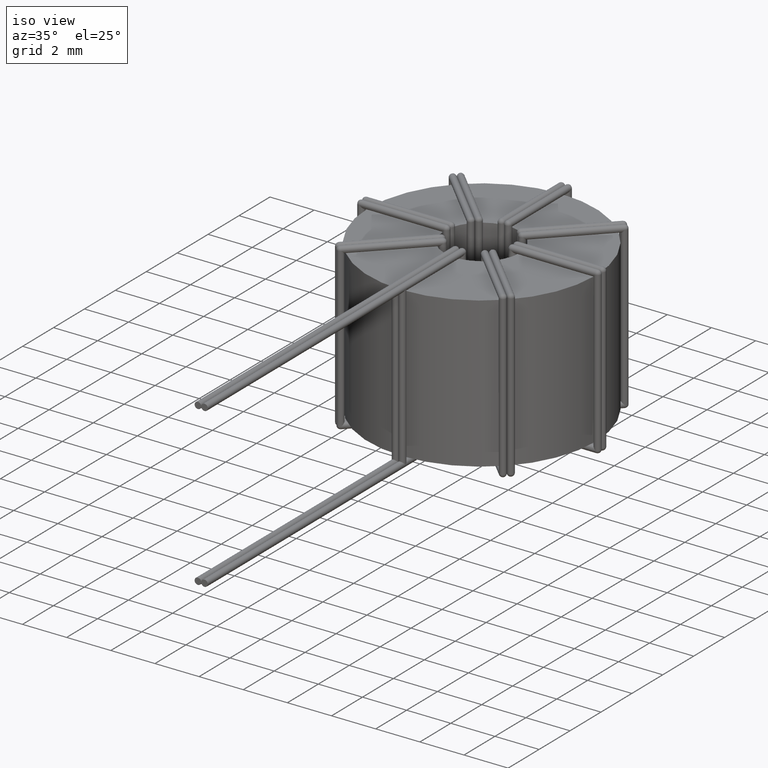
[diagram: clean part render]
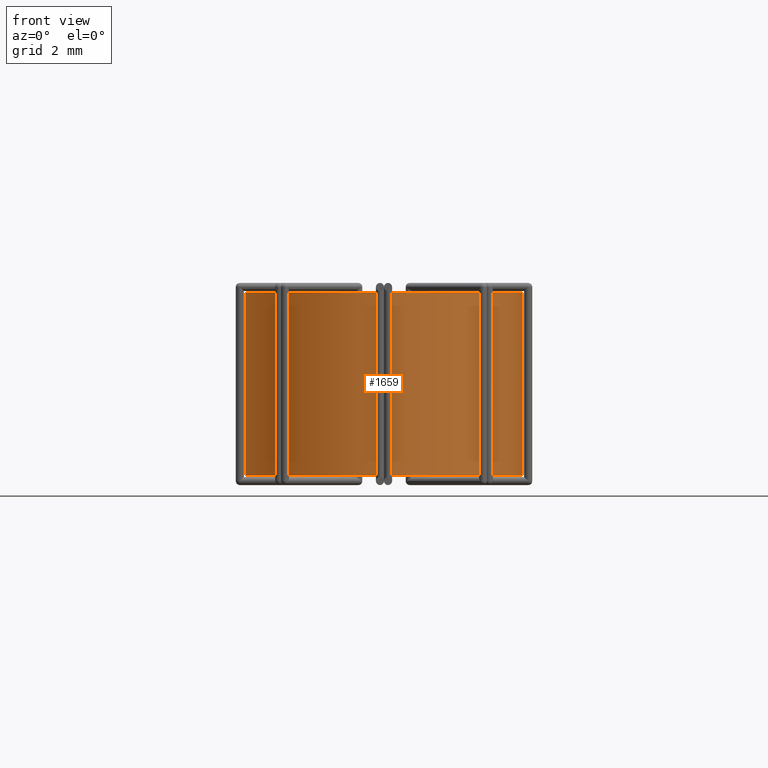
[diagram: tour spotlight — one face highlighted and labeled with its STEP entity id]
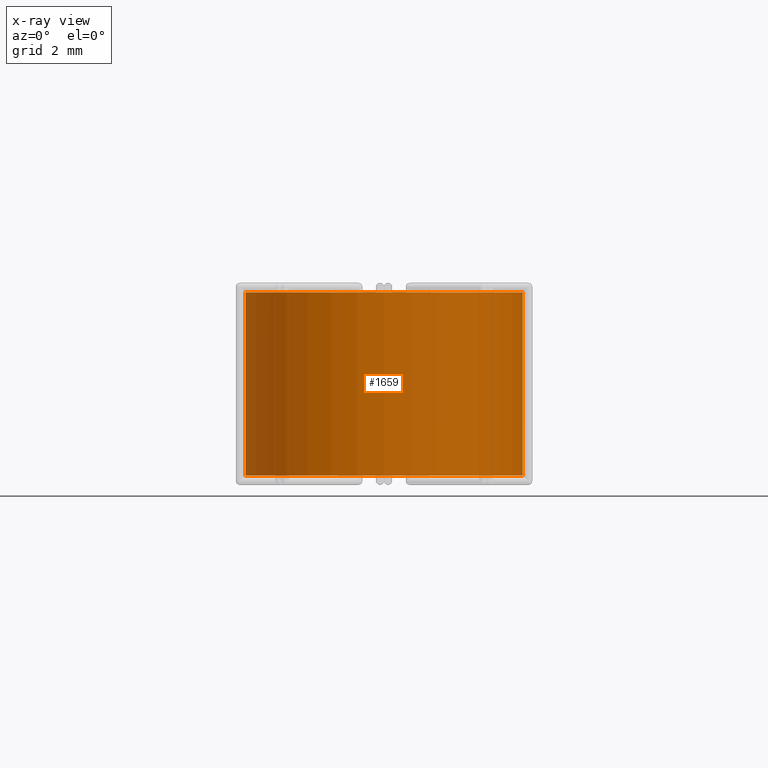
[diagram: x-ray of the same camera — body ghosted, this tour face saturated]
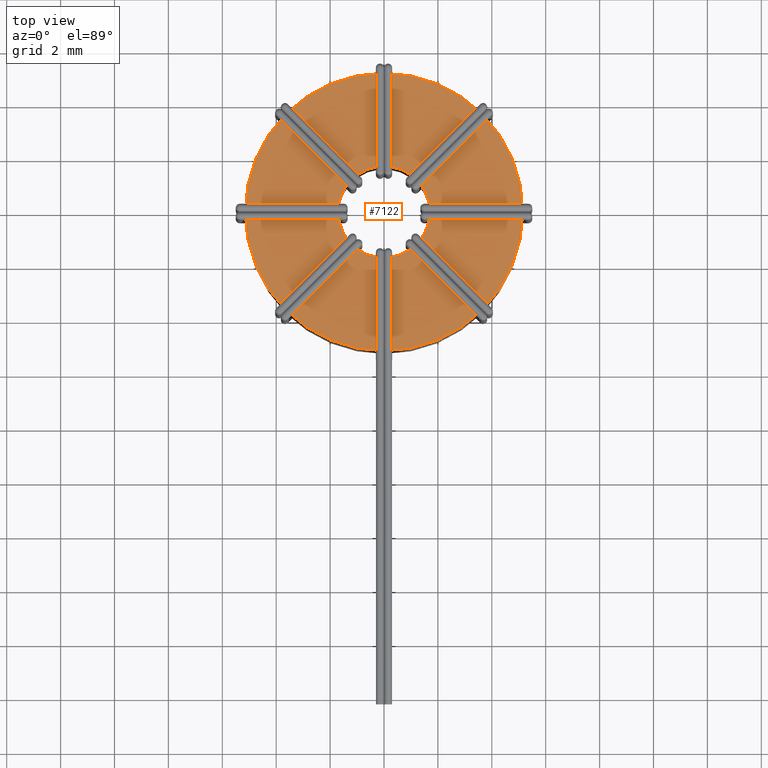
[diagram: tour spotlight — one face highlighted and labeled with its STEP entity id]
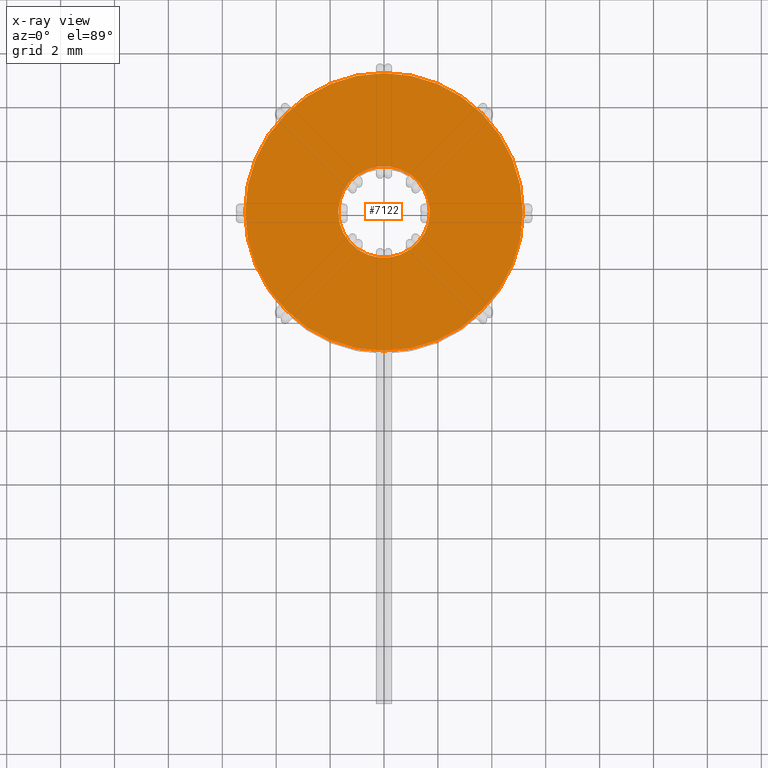
[diagram: x-ray of the same camera — body ghosted, this tour face saturated]
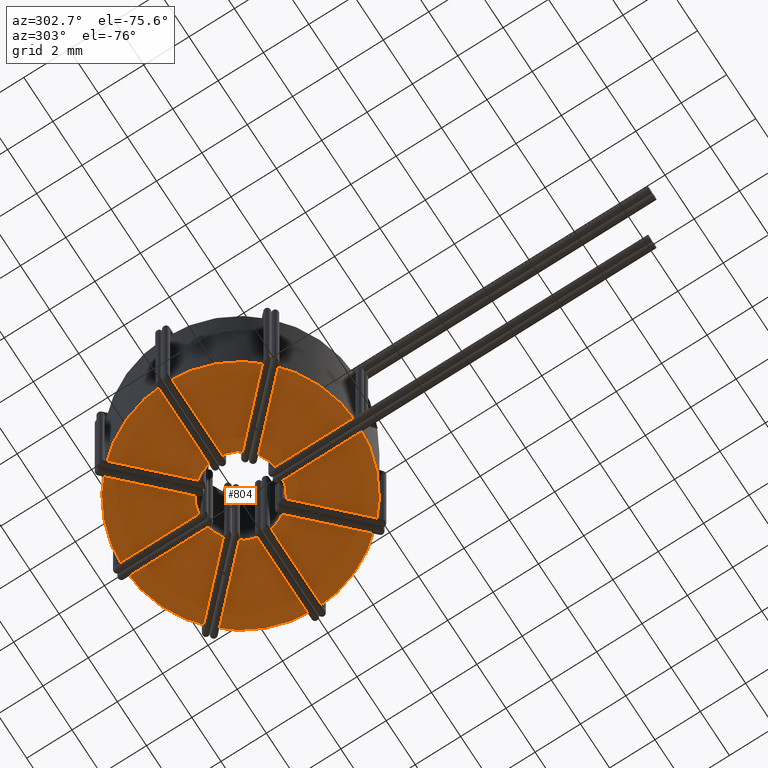
[diagram: tour spotlight — one face highlighted and labeled with its STEP entity id]
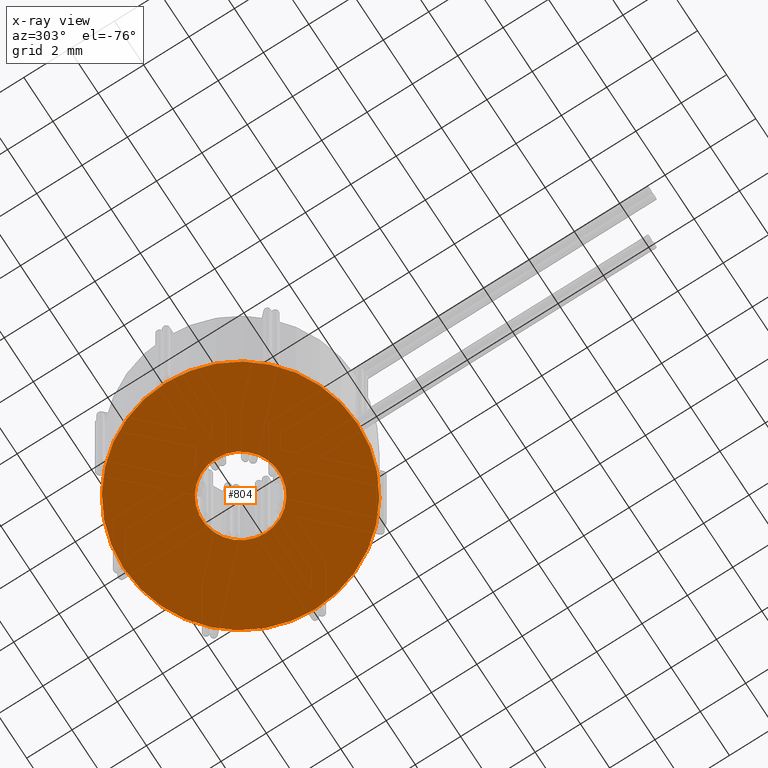
[diagram: x-ray of the same camera — body ghosted, this tour face saturated]
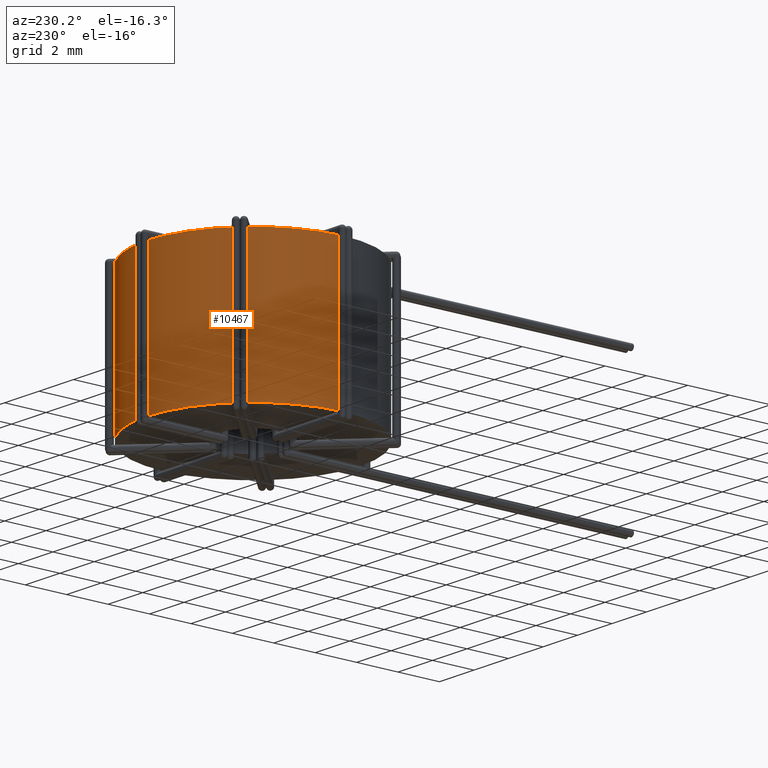
[diagram: tour spotlight — one face highlighted and labeled with its STEP entity id]
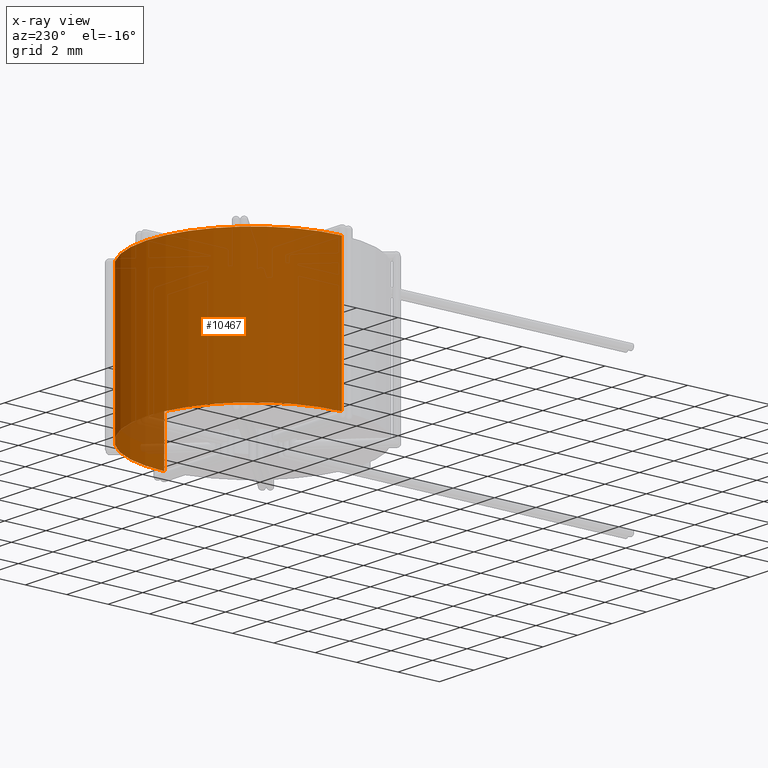
[diagram: x-ray of the same camera — body ghosted, this tour face saturated]
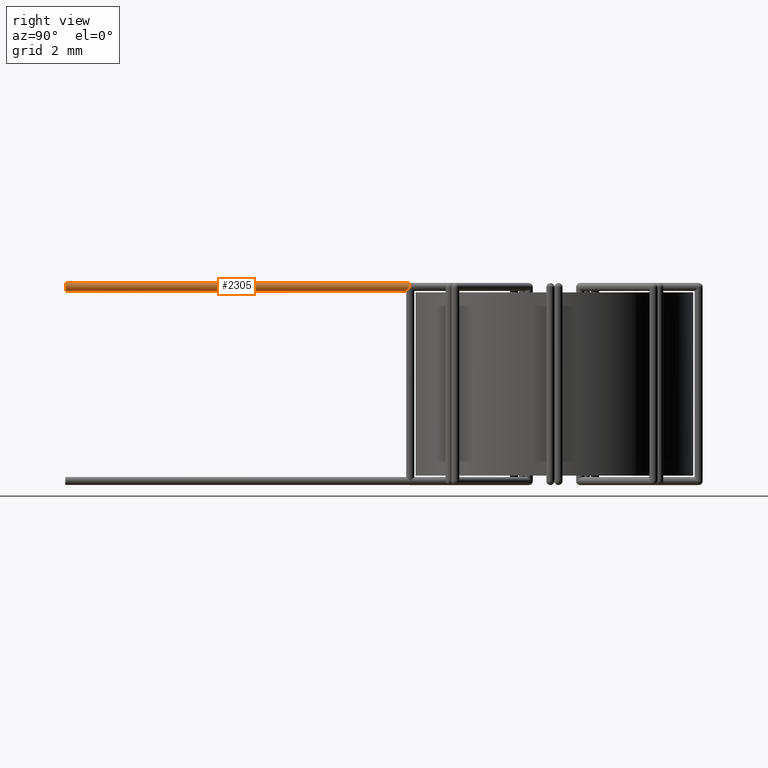
[diagram: tour spotlight — one face highlighted and labeled with its STEP entity id]
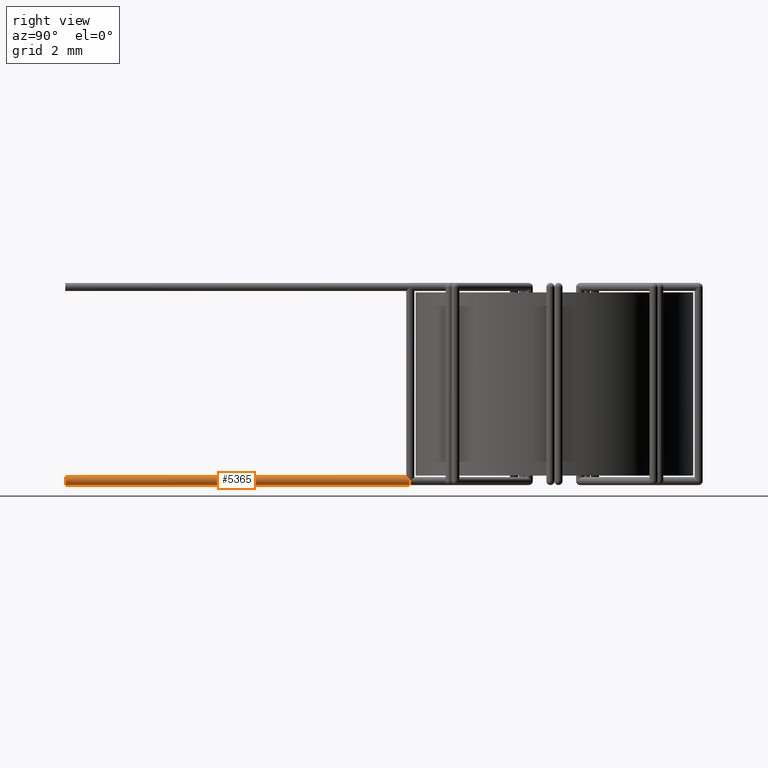
[diagram: tour spotlight — one face highlighted and labeled with its STEP entity id]
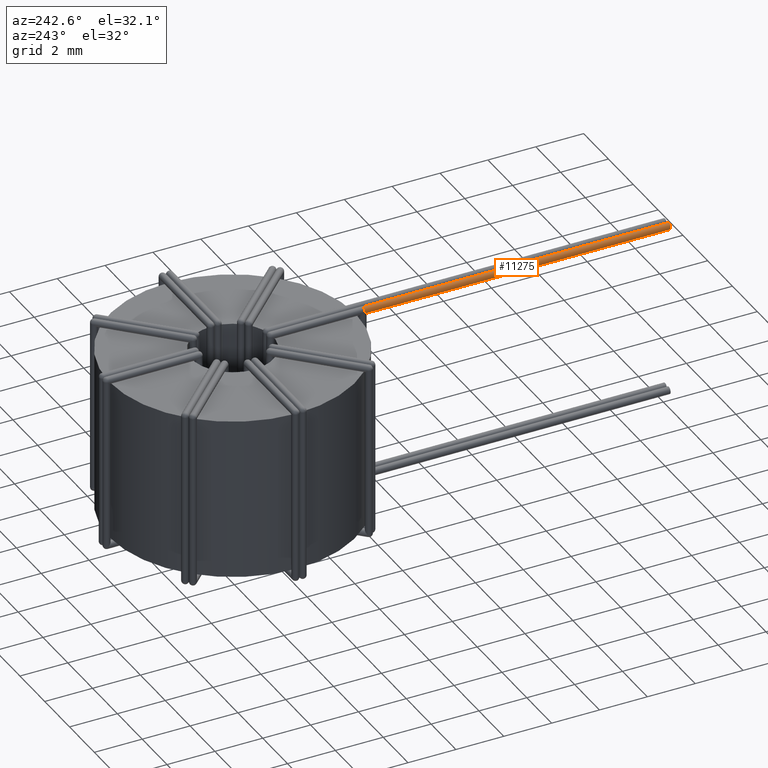
[diagram: tour spotlight — one face highlighted and labeled with its STEP entity id]
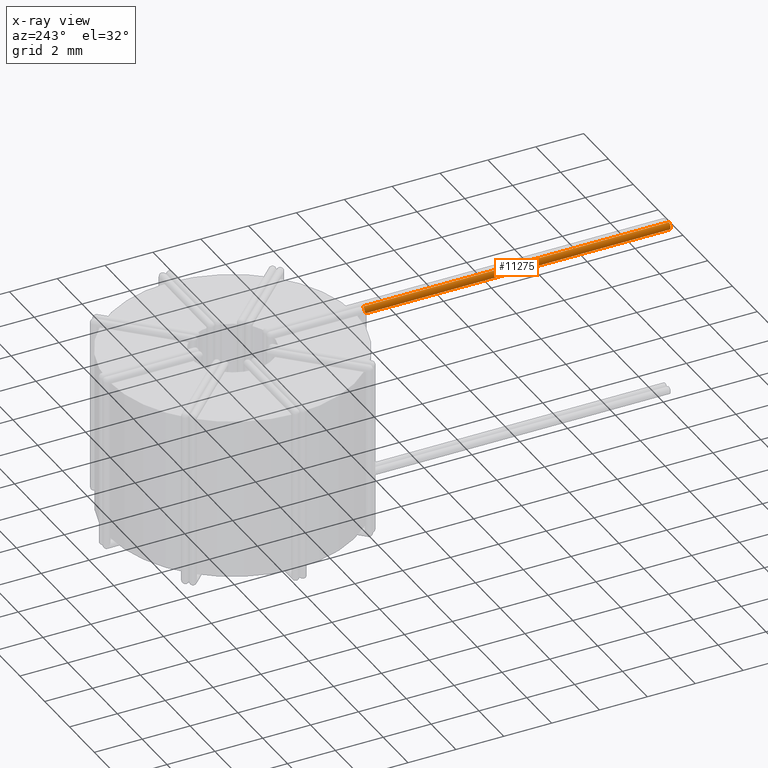
[diagram: x-ray of the same camera — body ghosted, this tour face saturated]
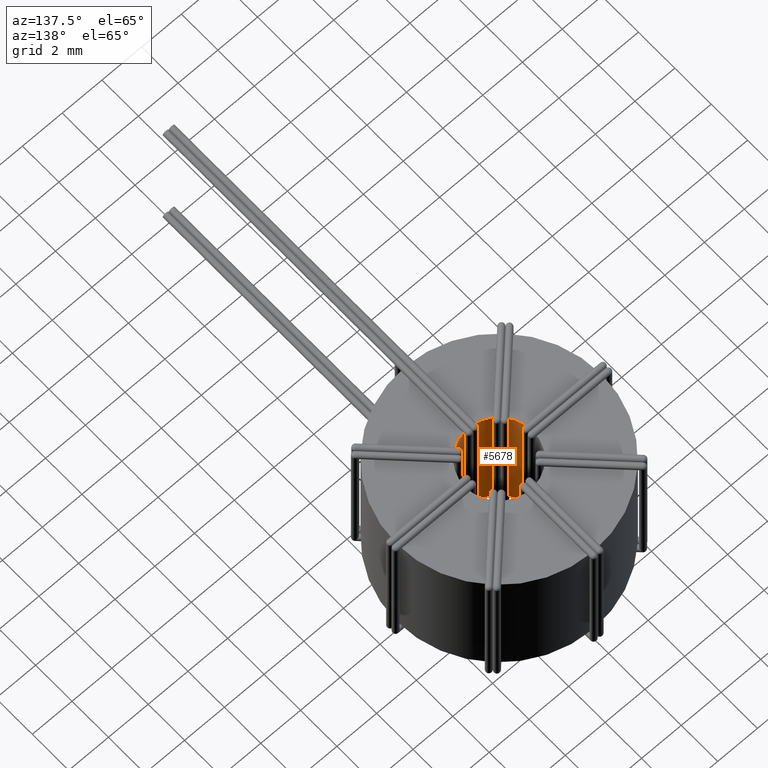
[diagram: tour spotlight — one face highlighted and labeled with its STEP entity id]
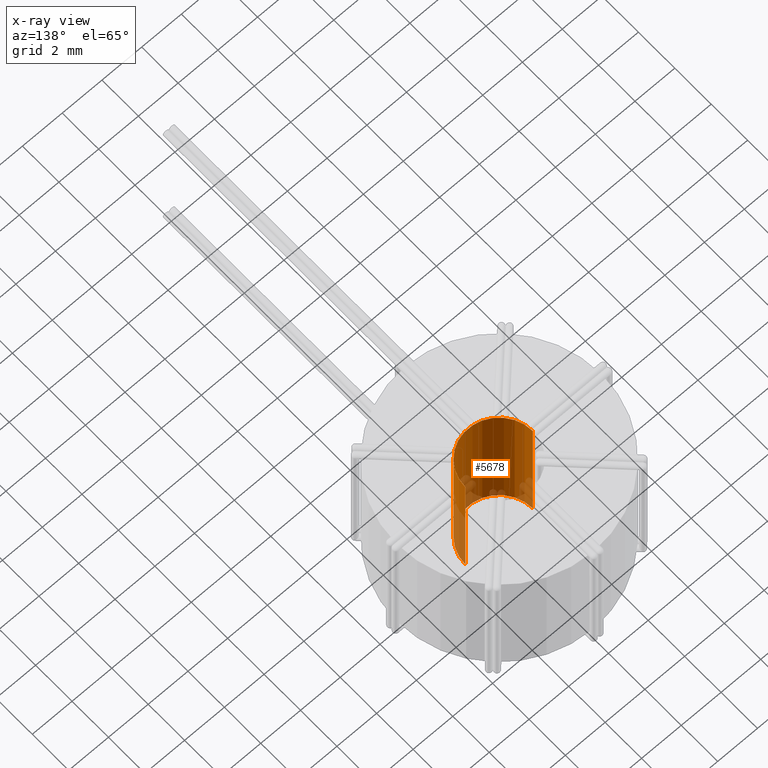
[diagram: x-ray of the same camera — body ghosted, this tour face saturated]
A machine part: a face-by-face anatomy tour. The part has 398 B-rep faces; the first image is the clean iso view, then the 8 largest visible faces are spotlighted one at a time (largest first), each with its STEP entity span.

Face 1 — front view, entity #1659. An x-ray twin of the same camera follows (body ghosted, this face saturated) — the face is partly hidden behind the body. In plain terms, the highlighted cylindrical surface (partial cylindrical patch) has radius 5.15 mm, axis along (-0, -0, -1).
Definition (entity closure, byte-faithful):
#30 = DIRECTION ( 'NONE',  ( 1.000000000000000000, 0.0000000000000000000, 0.0000000000000000000 ) ) ;
#178 = DIRECTION ( 'NONE',  ( -1.000000000000000000, 0.0000000000000000000, 0.0000000000000000000 ) ) ;
#180 = EDGE_CURVE ( 'NONE', #1134, #15159, #1705, .T. ) ;
#240 = CARTESIAN_POINT ( 'NONE',  ( -5.150000000000001200, 0.0000000000000000000, 6.799999999999999800 ) ) ;
#798 = CIRCLE ( 'NONE', #15149, 5.150000000000001200 ) ;
#859 = CARTESIAN_POINT ( 'NONE',  ( 5.150000000000001200, 6.306931015608869600E-016, 6.799999999999999800 ) ) ;
#909 = DIRECTION ( 'NONE',  ( -0.0000000000000000000, -0.0000000000000000000, -1.000000000000000000 ) ) ;
#1134 = VERTEX_POINT ( 'NONE', #240 ) ;
#1208 = DIRECTION ( 'NONE',  ( 0.0000000000000000000, 0.0000000000000000000, 1.000000000000000000 ) ) ;
#1659 = ADVANCED_FACE ( 'NONE', ( #6867 ), #9917, .T. ) ;
#1705 = LINE ( 'NONE', #12386, #15304 ) ;
#2496 = DIRECTION ( 'NONE',  ( 1.000000000000000000, 0.0000000000000000000, 0.0000000000000000000 ) ) ;
#3266 = EDGE_LOOP ( 'NONE', ( #14865, #10513, #3286, #10995 ) ) ;
#3286 = ORIENTED_EDGE ( 'NONE', *, *, #180, .T. ) ;
#3940 = EDGE_CURVE ( 'NONE', #15159, #6441, #10447, .T. ) ;
#4101 = EDGE_CURVE ( 'NONE', #13351, #6441, #6991, .T. ) ;
#5402 = CARTESIAN_POINT ( 'NONE',  ( 5.150000000000001200, 6.306931015608869600E-016, 6.799999999999999800 ) ) ;
#5963 = CARTESIAN_POINT ( 'NONE',  ( -5.150000000000001200, 0.0000000000000000000, 0.0000000000000000000 ) ) ;
#6269 = AXIS2_PLACEMENT_3D ( 'NONE', #14692, #14842, #178 ) ;
#6441 = VERTEX_POINT ( 'NONE', #12516 ) ;
#6867 = FACE_OUTER_BOUND ( 'NONE', #3266, .T. ) ;
#6991 = LINE ( 'NONE', #859, #14229 ) ;
#9863 = CARTESIAN_POINT ( 'NONE',  ( 0.0000000000000000000, 0.0000000000000000000, 0.0000000000000000000 ) ) ;
#9917 = CYLINDRICAL_SURFACE ( 'NONE', #6269, 5.150000000000001200 ) ;
#10447 = CIRCLE ( 'NONE', #13671, 5.150000000000001200 ) ;
#10513 = ORIENTED_EDGE ( 'NONE', *, *, #12531, .F. ) ;
#10995 = ORIENTED_EDGE ( 'NONE', *, *, #3940, .T. ) ;
#12164 = CARTESIAN_POINT ( 'NONE',  ( 0.0000000000000000000, 0.0000000000000000000, 6.799999999999999800 ) ) ;
#12386 = CARTESIAN_POINT ( 'NONE',  ( -5.150000000000001200, 0.0000000000000000000, 6.799999999999999800 ) ) ;
#12516 = CARTESIAN_POINT ( 'NONE',  ( 5.150000000000001200, 6.306931015608869600E-016, 0.0000000000000000000 ) ) ;
#12531 = EDGE_CURVE ( 'NONE', #1134, #13351, #798, .T. ) ;
#13351 = VERTEX_POINT ( 'NONE', #5402 ) ;
#13671 = AXIS2_PLACEMENT_3D ( 'NONE', #9863, #1208, #2496 ) ;
#14229 = VECTOR ( 'NONE', #909, 1000.000000000000000 ) ;
#14483 = DIRECTION ( 'NONE',  ( 0.0000000000000000000, 0.0000000000000000000, 1.000000000000000000 ) ) ;
#14692 = CARTESIAN_POINT ( 'NONE',  ( 0.0000000000000000000, 0.0000000000000000000, 6.799999999999999800 ) ) ;
#14700 = DIRECTION ( 'NONE',  ( -0.0000000000000000000, -0.0000000000000000000, -1.000000000000000000 ) ) ;
#14842 = DIRECTION ( 'NONE',  ( -0.0000000000000000000, -0.0000000000000000000, -1.000000000000000000 ) ) ;
#14865 = ORIENTED_EDGE ( 'NONE', *, *, #4101, .F. ) ;
#15149 = AXIS2_PLACEMENT_3D ( 'NONE', #12164, #14483, #30 ) ;
#15159 = VERTEX_POINT ( 'NONE', #5963 ) ;
#15304 = VECTOR ( 'NONE', #14700, 1000.000000000000000 ) ;

Face 2 — top view, entity #7122. An x-ray twin of the same camera follows (body ghosted, this face saturated) — the face is partly hidden behind the body. In plain terms, the highlighted planar face has unit normal (0, 0, 1).
Definition (entity closure, byte-faithful):
#30 = DIRECTION ( 'NONE',  ( 1.000000000000000000, 0.0000000000000000000, 0.0000000000000000000 ) ) ;
#240 = CARTESIAN_POINT ( 'NONE',  ( -5.150000000000001200, 0.0000000000000000000, 6.799999999999999800 ) ) ;
#286 = CARTESIAN_POINT ( 'NONE',  ( 0.0000000000000000000, 0.0000000000000000000, 6.799999999999999800 ) ) ;
#653 = ORIENTED_EDGE ( 'NONE', *, *, #12531, .T. ) ;
#798 = CIRCLE ( 'NONE', #15149, 5.150000000000001200 ) ;
#953 = CARTESIAN_POINT ( 'NONE',  ( 0.0000000000000000000, 0.0000000000000000000, 6.799999999999999800 ) ) ;
#967 = CIRCLE ( 'NONE', #13948, 1.699500000000000200 ) ;
#1134 = VERTEX_POINT ( 'NONE', #240 ) ;
#1794 = CIRCLE ( 'NONE', #15066, 5.150000000000001200 ) ;
#1810 = AXIS2_PLACEMENT_3D ( 'NONE', #8461, #7154, #5867 ) ;
#2139 = ORIENTED_EDGE ( 'NONE', *, *, #7177, .T. ) ;
#2204 = DIRECTION ( 'NONE',  ( 0.0000000000000000000, 0.0000000000000000000, 1.000000000000000000 ) ) ;
#2832 = DIRECTION ( 'NONE',  ( 1.000000000000000000, 0.0000000000000000000, 0.0000000000000000000 ) ) ;
#3890 = FACE_BOUND ( 'NONE', #7822, .T. ) ;
#4662 = FACE_OUTER_BOUND ( 'NONE', #12675, .T. ) ;
#5402 = CARTESIAN_POINT ( 'NONE',  ( 5.150000000000001200, 6.306931015608869600E-016, 6.799999999999999800 ) ) ;
#5867 = DIRECTION ( 'NONE',  ( 1.000000000000000000, 0.0000000000000000000, -0.0000000000000000000 ) ) ;
#6338 = VERTEX_POINT ( 'NONE', #13457 ) ;
#7044 = PLANE ( 'NONE',  #1810 ) ;
#7122 = ADVANCED_FACE ( 'NONE', ( #4662, #3890 ), #7044, .T. ) ;
#7154 = DIRECTION ( 'NONE',  ( 0.0000000000000000000, 0.0000000000000000000, 1.000000000000000000 ) ) ;
#7177 = EDGE_CURVE ( 'NONE', #13351, #1134, #1794, .T. ) ;
#7686 = EDGE_CURVE ( 'NONE', #6338, #12454, #967, .T. ) ;
#7782 = EDGE_CURVE ( 'NONE', #12454, #6338, #11917, .T. ) ;
#7822 = EDGE_LOOP ( 'NONE', ( #13158, #8034 ) ) ;
#8034 = ORIENTED_EDGE ( 'NONE', *, *, #7686, .F. ) ;
#8461 = CARTESIAN_POINT ( 'NONE',  ( 0.0000000000000000000, 0.0000000000000000000, 6.799999999999999800 ) ) ;
#8962 = DIRECTION ( 'NONE',  ( 0.0000000000000000000, 0.0000000000000000000, 1.000000000000000000 ) ) ;
#9523 = DIRECTION ( 'NONE',  ( 0.0000000000000000000, 0.0000000000000000000, 1.000000000000000000 ) ) ;
#11917 = CIRCLE ( 'NONE', #13337, 1.699500000000000200 ) ;
#12120 = DIRECTION ( 'NONE',  ( 1.000000000000000000, 0.0000000000000000000, 0.0000000000000000000 ) ) ;
#12164 = CARTESIAN_POINT ( 'NONE',  ( 0.0000000000000000000, 0.0000000000000000000, 6.799999999999999800 ) ) ;
#12217 = CARTESIAN_POINT ( 'NONE',  ( -1.699500000000000200, 0.0000000000000000000, 6.799999999999999800 ) ) ;
#12454 = VERTEX_POINT ( 'NONE', #12217 ) ;
#12531 = EDGE_CURVE ( 'NONE', #1134, #13351, #798, .T. ) ;
#12675 = EDGE_LOOP ( 'NONE', ( #653, #2139 ) ) ;
#13158 = ORIENTED_EDGE ( 'NONE', *, *, #7782, .F. ) ;
#13337 = AXIS2_PLACEMENT_3D ( 'NONE', #15780, #9523, #12120 ) ;
#13351 = VERTEX_POINT ( 'NONE', #5402 ) ;
#13457 = CARTESIAN_POINT ( 'NONE',  ( 1.699500000000000200, 2.081287235150927300E-016, 6.799999999999999800 ) ) ;
#13948 = AXIS2_PLACEMENT_3D ( 'NONE', #953, #2204, #15657 ) ;
#14483 = DIRECTION ( 'NONE',  ( 0.0000000000000000000, 0.0000000000000000000, 1.000000000000000000 ) ) ;
#15066 = AXIS2_PLACEMENT_3D ( 'NONE', #286, #8962, #2832 ) ;
#15149 = AXIS2_PLACEMENT_3D ( 'NONE', #12164, #14483, #30 ) ;
#15657 = DIRECTION ( 'NONE',  ( 1.000000000000000000, 0.0000000000000000000, 0.0000000000000000000 ) ) ;
#15780 = CARTESIAN_POINT ( 'NONE',  ( 0.0000000000000000000, 0.0000000000000000000, 6.799999999999999800 ) ) ;

Face 3 — auxiliary view, entity #804. An x-ray twin of the same camera follows (body ghosted, this face saturated) — the face is partly hidden behind the body. In plain terms, the highlighted planar face has unit normal (0, 0, 1).
Definition (entity closure, byte-faithful):
#713 = DIRECTION ( 'NONE',  ( 1.000000000000000000, 0.0000000000000000000, 0.0000000000000000000 ) ) ;
#804 = ADVANCED_FACE ( 'NONE', ( #2735, #8083 ), #11430, .F. ) ;
#861 = DIRECTION ( 'NONE',  ( 1.000000000000000000, 0.0000000000000000000, 0.0000000000000000000 ) ) ;
#932 = DIRECTION ( 'NONE',  ( 0.0000000000000000000, 0.0000000000000000000, 1.000000000000000000 ) ) ;
#1208 = DIRECTION ( 'NONE',  ( 0.0000000000000000000, 0.0000000000000000000, 1.000000000000000000 ) ) ;
#1763 = ORIENTED_EDGE ( 'NONE', *, *, #14431, .F. ) ;
#2496 = DIRECTION ( 'NONE',  ( 1.000000000000000000, 0.0000000000000000000, 0.0000000000000000000 ) ) ;
#2735 = FACE_OUTER_BOUND ( 'NONE', #7908, .T. ) ;
#2817 = CARTESIAN_POINT ( 'NONE',  ( 0.0000000000000000000, 0.0000000000000000000, 0.0000000000000000000 ) ) ;
#3889 = AXIS2_PLACEMENT_3D ( 'NONE', #8108, #4423, #4475 ) ;
#3940 = EDGE_CURVE ( 'NONE', #15159, #6441, #10447, .T. ) ;
#4400 = EDGE_LOOP ( 'NONE', ( #7217, #9536 ) ) ;
#4423 = DIRECTION ( 'NONE',  ( 0.0000000000000000000, 0.0000000000000000000, 1.000000000000000000 ) ) ;
#4475 = DIRECTION ( 'NONE',  ( 1.000000000000000000, 0.0000000000000000000, 0.0000000000000000000 ) ) ;
#4698 = CIRCLE ( 'NONE', #3889, 5.150000000000001200 ) ;
#4921 = CARTESIAN_POINT ( 'NONE',  ( -1.699500000000000200, 0.0000000000000000000, 0.0000000000000000000 ) ) ;
#5283 = AXIS2_PLACEMENT_3D ( 'NONE', #10561, #6978, #861 ) ;
#5963 = CARTESIAN_POINT ( 'NONE',  ( -5.150000000000001200, 0.0000000000000000000, 0.0000000000000000000 ) ) ;
#6441 = VERTEX_POINT ( 'NONE', #12516 ) ;
#6505 = DIRECTION ( 'NONE',  ( 1.000000000000000000, 0.0000000000000000000, -0.0000000000000000000 ) ) ;
#6603 = DIRECTION ( 'NONE',  ( 0.0000000000000000000, 0.0000000000000000000, 1.000000000000000000 ) ) ;
#6978 = DIRECTION ( 'NONE',  ( 0.0000000000000000000, 0.0000000000000000000, 1.000000000000000000 ) ) ;
#7217 = ORIENTED_EDGE ( 'NONE', *, *, #10731, .T. ) ;
#7563 = CIRCLE ( 'NONE', #14351, 1.699500000000000200 ) ;
#7599 = CIRCLE ( 'NONE', #5283, 1.699500000000000200 ) ;
#7908 = EDGE_LOOP ( 'NONE', ( #13250, #1763 ) ) ;
#8061 = CARTESIAN_POINT ( 'NONE',  ( 0.0000000000000000000, 0.0000000000000000000, 0.0000000000000000000 ) ) ;
#8083 = FACE_BOUND ( 'NONE', #4400, .T. ) ;
#8108 = CARTESIAN_POINT ( 'NONE',  ( 0.0000000000000000000, 0.0000000000000000000, 0.0000000000000000000 ) ) ;
#8642 = VERTEX_POINT ( 'NONE', #4921 ) ;
#9536 = ORIENTED_EDGE ( 'NONE', *, *, #11796, .T. ) ;
#9863 = CARTESIAN_POINT ( 'NONE',  ( 0.0000000000000000000, 0.0000000000000000000, 0.0000000000000000000 ) ) ;
#10447 = CIRCLE ( 'NONE', #13671, 5.150000000000001200 ) ;
#10561 = CARTESIAN_POINT ( 'NONE',  ( 0.0000000000000000000, 0.0000000000000000000, 0.0000000000000000000 ) ) ;
#10731 = EDGE_CURVE ( 'NONE', #8642, #13349, #7599, .T. ) ;
#11430 = PLANE ( 'NONE',  #14517 ) ;
#11547 = CARTESIAN_POINT ( 'NONE',  ( 1.699500000000000200, 2.081287235150927300E-016, 0.0000000000000000000 ) ) ;
#11796 = EDGE_CURVE ( 'NONE', #13349, #8642, #7563, .T. ) ;
#12516 = CARTESIAN_POINT ( 'NONE',  ( 5.150000000000001200, 6.306931015608869600E-016, 0.0000000000000000000 ) ) ;
#13250 = ORIENTED_EDGE ( 'NONE', *, *, #3940, .F. ) ;
#13349 = VERTEX_POINT ( 'NONE', #11547 ) ;
#13671 = AXIS2_PLACEMENT_3D ( 'NONE', #9863, #1208, #2496 ) ;
#14351 = AXIS2_PLACEMENT_3D ( 'NONE', #8061, #932, #713 ) ;
#14431 = EDGE_CURVE ( 'NONE', #6441, #15159, #4698, .T. ) ;
#14517 = AXIS2_PLACEMENT_3D ( 'NONE', #2817, #6603, #6505 ) ;
#15159 = VERTEX_POINT ( 'NONE', #5963 ) ;

Face 4 — auxiliary view, entity #10467. An x-ray twin of the same camera follows (body ghosted, this face saturated) — the face is partly hidden behind the body. In plain terms, the highlighted cylindrical surface (partial cylindrical patch) has radius 5.15 mm, axis along (-0, -0, -1).
Definition (entity closure, byte-faithful):
#180 = EDGE_CURVE ( 'NONE', #1134, #15159, #1705, .T. ) ;
#240 = CARTESIAN_POINT ( 'NONE',  ( -5.150000000000001200, 0.0000000000000000000, 6.799999999999999800 ) ) ;
#286 = CARTESIAN_POINT ( 'NONE',  ( 0.0000000000000000000, 0.0000000000000000000, 6.799999999999999800 ) ) ;
#523 = CYLINDRICAL_SURFACE ( 'NONE', #11318, 5.150000000000001200 ) ;
#859 = CARTESIAN_POINT ( 'NONE',  ( 5.150000000000001200, 6.306931015608869600E-016, 6.799999999999999800 ) ) ;
#909 = DIRECTION ( 'NONE',  ( -0.0000000000000000000, -0.0000000000000000000, -1.000000000000000000 ) ) ;
#1134 = VERTEX_POINT ( 'NONE', #240 ) ;
#1705 = LINE ( 'NONE', #12386, #15304 ) ;
#1794 = CIRCLE ( 'NONE', #15066, 5.150000000000001200 ) ;
#2832 = DIRECTION ( 'NONE',  ( 1.000000000000000000, 0.0000000000000000000, 0.0000000000000000000 ) ) ;
#3889 = AXIS2_PLACEMENT_3D ( 'NONE', #8108, #4423, #4475 ) ;
#3936 = ORIENTED_EDGE ( 'NONE', *, *, #4101, .T. ) ;
#4101 = EDGE_CURVE ( 'NONE', #13351, #6441, #6991, .T. ) ;
#4189 = EDGE_LOOP ( 'NONE', ( #6502, #3936, #14366, #7871 ) ) ;
#4423 = DIRECTION ( 'NONE',  ( 0.0000000000000000000, 0.0000000000000000000, 1.000000000000000000 ) ) ;
#4475 = DIRECTION ( 'NONE',  ( 1.000000000000000000, 0.0000000000000000000, 0.0000000000000000000 ) ) ;
#4698 = CIRCLE ( 'NONE', #3889, 5.150000000000001200 ) ;
#5402 = CARTESIAN_POINT ( 'NONE',  ( 5.150000000000001200, 6.306931015608869600E-016, 6.799999999999999800 ) ) ;
#5963 = CARTESIAN_POINT ( 'NONE',  ( -5.150000000000001200, 0.0000000000000000000, 0.0000000000000000000 ) ) ;
#5979 = DIRECTION ( 'NONE',  ( -0.0000000000000000000, -0.0000000000000000000, -1.000000000000000000 ) ) ;
#6441 = VERTEX_POINT ( 'NONE', #12516 ) ;
#6502 = ORIENTED_EDGE ( 'NONE', *, *, #7177, .F. ) ;
#6991 = LINE ( 'NONE', #859, #14229 ) ;
#7177 = EDGE_CURVE ( 'NONE', #13351, #1134, #1794, .T. ) ;
#7871 = ORIENTED_EDGE ( 'NONE', *, *, #180, .F. ) ;
#8108 = CARTESIAN_POINT ( 'NONE',  ( 0.0000000000000000000, 0.0000000000000000000, 0.0000000000000000000 ) ) ;
#8962 = DIRECTION ( 'NONE',  ( 0.0000000000000000000, 0.0000000000000000000, 1.000000000000000000 ) ) ;
#10467 = ADVANCED_FACE ( 'NONE', ( #13940 ), #523, .T. ) ;
#11318 = AXIS2_PLACEMENT_3D ( 'NONE', #14725, #5979, #14497 ) ;
#12386 = CARTESIAN_POINT ( 'NONE',  ( -5.150000000000001200, 0.0000000000000000000, 6.799999999999999800 ) ) ;
#12516 = CARTESIAN_POINT ( 'NONE',  ( 5.150000000000001200, 6.306931015608869600E-016, 0.0000000000000000000 ) ) ;
#13351 = VERTEX_POINT ( 'NONE', #5402 ) ;
#13940 = FACE_OUTER_BOUND ( 'NONE', #4189, .T. ) ;
#14229 = VECTOR ( 'NONE', #909, 1000.000000000000000 ) ;
#14366 = ORIENTED_EDGE ( 'NONE', *, *, #14431, .T. ) ;
#14431 = EDGE_CURVE ( 'NONE', #6441, #15159, #4698, .T. ) ;
#14497 = DIRECTION ( 'NONE',  ( -1.000000000000000000, 0.0000000000000000000, 0.0000000000000000000 ) ) ;
#14700 = DIRECTION ( 'NONE',  ( -0.0000000000000000000, -0.0000000000000000000, -1.000000000000000000 ) ) ;
#14725 = CARTESIAN_POINT ( 'NONE',  ( 0.0000000000000000000, 0.0000000000000000000, 6.799999999999999800 ) ) ;
#15066 = AXIS2_PLACEMENT_3D ( 'NONE', #286, #8962, #2832 ) ;
#15159 = VERTEX_POINT ( 'NONE', #5963 ) ;
#15304 = VECTOR ( 'NONE', #14700, 1000.000000000000000 ) ;

Face 5 — right view, entity #2305. In plain terms, the highlighted cylindrical surface (edge-blend (fillet) strip) has radius 0.149 mm, axis along (-0, 1, 0).
Definition (entity closure, byte-faithful):
#173 = VERTEX_POINT ( 'NONE', #7553 ) ;
#454 = CARTESIAN_POINT ( 'NONE',  ( 0.1500000000000192000, -18.14999999999999900, 6.851000000000000900 ) ) ;
#700 = ORIENTED_EDGE ( 'NONE', *, *, #5318, .F. ) ;
#1654 = EDGE_CURVE ( 'NONE', #7656, #8957, #11181, .T. ) ;
#1843 = EDGE_CURVE ( 'NONE', #3243, #173, #6846, .T. ) ;
#1921 = CARTESIAN_POINT ( 'NONE',  ( 0.1500000000000191700, -18.14999999999999900, 7.000000000000000000 ) ) ;
#2264 = ORIENTED_EDGE ( 'NONE', *, *, #1843, .F. ) ;
#2305 = ADVANCED_FACE ( 'NONE', ( #9903 ), #4335, .T. ) ;
#2468 = CARTESIAN_POINT ( 'NONE',  ( 0.2978086390930689800, -5.376653186580584000, 6.979253218685205900 ) ) ;
#2487 = VECTOR ( 'NONE', #12697, 1000.000000000000000 ) ;
#3110 = LINE ( 'NONE', #454, #10006 ) ;
#3151 = DIRECTION ( 'NONE',  ( 0.0000000000000000000, -1.000000000000000000, 0.0000000000000000000 ) ) ;
#3243 = VERTEX_POINT ( 'NONE', #12085 ) ;
#3903 = CARTESIAN_POINT ( 'NONE',  ( 0.1500000000020490200, -5.500000000000005300, 6.850999999999994600 ) ) ;
#4141 = CARTESIAN_POINT ( 'NONE',  ( 0.1500000000000191700, -18.14999999999999900, 7.148999999999999100 ) ) ;
#4318 = DIRECTION ( 'NONE',  ( 0.0000000000000000000, 0.0000000000000000000, 1.000000000000000000 ) ) ;
#4335 = CYLINDRICAL_SURFACE ( 'NONE', #9468, 0.1489999999999989700 ) ;
#4340 = CARTESIAN_POINT ( 'NONE',  ( 0.2990000000000171400, -5.367291616465798200, 7.000000000000000000 ) ) ;
#4375 = DIRECTION ( 'NONE',  ( 0.0000000000000000000, 0.0000000000000000000, -1.000000000000000000 ) ) ;
#4832 = EDGE_CURVE ( 'NONE', #3243, #8957, #3110, .T. ) ;
#4844 = ORIENTED_EDGE ( 'NONE', *, *, #4832, .T. ) ;
#5318 = EDGE_CURVE ( 'NONE', #173, #12991, #10338, .T. ) ;
#5485 = DIRECTION ( 'NONE',  ( -0.0000000000000000000, 1.000000000000000000, 0.0000000000000000000 ) ) ;
#5601 = ORIENTED_EDGE ( 'NONE', *, *, #1654, .F. ) ;
#6154 = CARTESIAN_POINT ( 'NONE',  ( 0.1500000000020490200, -5.500000000000005300, 6.850999999999994600 ) ) ;
#6664 = DIRECTION ( 'NONE',  ( -0.0000000000000000000, 1.000000000000000000, -0.0000000000000000000 ) ) ;
#6846 = CIRCLE ( 'NONE', #10863, 0.1489999999999989700 ) ;
#7336 = CARTESIAN_POINT ( 'NONE',  ( 0.2990000000000171400, -5.367291616465798200, 7.000000000000000000 ) ) ;
#7553 = CARTESIAN_POINT ( 'NONE',  ( 0.1500000000000191700, -18.14999999999999900, 7.148999999999999100 ) ) ;
#7656 = VERTEX_POINT ( 'NONE', #4340 ) ;
#8541 = CARTESIAN_POINT ( 'NONE',  ( 0.2990000000008871700, -5.367291616578304700, 6.988461229464673100 ) ) ;
#8957 = VERTEX_POINT ( 'NONE', #3903 ) ;
#9374 = EDGE_CURVE ( 'NONE', #12991, #7656, #10955, .T. ) ;
#9468 = AXIS2_PLACEMENT_3D ( 'NONE', #14035, #5485, #11635 ) ;
#9903 = FACE_OUTER_BOUND ( 'NONE', #12874, .T. ) ;
#10006 = VECTOR ( 'NONE', #14011, 1000.000000000000000 ) ;
#10338 = LINE ( 'NONE', #4141, #2487 ) ;
#10863 = AXIS2_PLACEMENT_3D ( 'NONE', #1921, #3151, #4375 ) ;
#10955 = CIRCLE ( 'NONE', #12263, 0.1489999999999989700 ) ;
#10993 = CARTESIAN_POINT ( 'NONE',  ( 0.2943568111424478800, -5.391459585408300700, 6.962066719068179300 ) ) ;
#11169 = CARTESIAN_POINT ( 'NONE',  ( 0.2826082130685768600, -5.422001166167728300, 6.929937927885560200 ) ) ;
#11181 = B_SPLINE_CURVE_WITH_KNOTS ( 'NONE', 3,
 ( #7336, #8541, #2468, #10993, #12325, #11169, #13520, #13476, #12375, #6154 ),
 .UNSPECIFIED., .F., .F.,
 ( 4, 2, 2, 2, 4 ),
 ( 0.0002738234156174612600, 0.0003083521197162159600, 0.0003428808238149707200, 0.0004119382320124800700, 0.0005500530484075003400 ),
 .UNSPECIFIED. ) ;
#11608 = CARTESIAN_POINT ( 'NONE',  ( 0.1500000000000187300, -5.367291616465798200, 7.148999999999999100 ) ) ;
#11635 = DIRECTION ( 'NONE',  ( 0.0000000000000000000, 0.0000000000000000000, 1.000000000000000000 ) ) ;
#12085 = CARTESIAN_POINT ( 'NONE',  ( 0.1500000000000192000, -18.14999999999999900, 6.851000000000000900 ) ) ;
#12263 = AXIS2_PLACEMENT_3D ( 'NONE', #14043, #6664, #4318 ) ;
#12325 = CARTESIAN_POINT ( 'NONE',  ( 0.2919290856095189700, -5.399228154382438300, 6.953844906144757600 ) ) ;
#12375 = CARTESIAN_POINT ( 'NONE',  ( 0.1963878780918439400, -5.499999999999372100, 6.851000000000635000 ) ) ;
#12697 = DIRECTION ( 'NONE',  ( -0.0000000000000000000, 1.000000000000000000, 0.0000000000000000000 ) ) ;
#12874 = EDGE_LOOP ( 'NONE', ( #2264, #4844, #5601, #15010, #700 ) ) ;
#12991 = VERTEX_POINT ( 'NONE', #11608 ) ;
#13476 = CARTESIAN_POINT ( 'NONE',  ( 0.2367618886963502900, -5.477773400356643800, 6.873312027505853900 ) ) ;
#13520 = CARTESIAN_POINT ( 'NONE',  ( 0.2737193045180504300, -5.436786810528950300, 6.914919740152122100 ) ) ;
#14011 = DIRECTION ( 'NONE',  ( -0.0000000000000000000, 1.000000000000000000, 0.0000000000000000000 ) ) ;
#14035 = CARTESIAN_POINT ( 'NONE',  ( 0.1500000000000191700, -18.14999999999999900, 7.000000000000000000 ) ) ;
#14043 = CARTESIAN_POINT ( 'NONE',  ( 0.1500000000000191700, -5.367291616465798200, 7.000000000000000000 ) ) ;
#15010 = ORIENTED_EDGE ( 'NONE', *, *, #9374, .F. ) ;

Face 6 — right view, entity #5365. In plain terms, the highlighted cylindrical surface (edge-blend (fillet) strip) has radius 0.149 mm, axis along (-0, 1, 0).
Definition (entity closure, byte-faithful):
#132 = ORIENTED_EDGE ( 'NONE', *, *, #11473, .F. ) ;
#284 = DIRECTION ( 'NONE',  ( 0.0000000000000000000, -1.000000000000000000, 0.0000000000000000000 ) ) ;
#490 = VERTEX_POINT ( 'NONE', #10326 ) ;
#1405 = CARTESIAN_POINT ( 'NONE',  ( 0.2978214704564922700, -5.376588183291993900, -0.1793324913612718000 ) ) ;
#1515 = FACE_OUTER_BOUND ( 'NONE', #15690, .T. ) ;
#1585 = LINE ( 'NONE', #15260, #2359 ) ;
#1743 = DIRECTION ( 'NONE',  ( 0.0000000000000000000, 0.0000000000000000000, 1.000000000000000000 ) ) ;
#2359 = VECTOR ( 'NONE', #10468, 1000.000000000000000 ) ;
#2383 = EDGE_CURVE ( 'NONE', #3010, #14523, #7735, .T. ) ;
#2746 = CARTESIAN_POINT ( 'NONE',  ( 0.2919411279747549100, -5.399196991999694700, -0.1538777800001774100 ) ) ;
#2891 = DIRECTION ( 'NONE',  ( 0.0000000000000000000, 0.0000000000000000000, -1.000000000000000000 ) ) ;
#3010 = VERTEX_POINT ( 'NONE', #6742 ) ;
#3277 = VECTOR ( 'NONE', #7402, 1000.000000000000000 ) ;
#3497 = CARTESIAN_POINT ( 'NONE',  ( 0.1500000000000192000, -18.14999999999999900, -0.3489999999999906000 ) ) ;
#3826 = CYLINDRICAL_SURFACE ( 'NONE', #6594, 0.1489999999999911100 ) ;
#3914 = CARTESIAN_POINT ( 'NONE',  ( 0.2943641201988213600, -5.391438139653084600, -0.1620878140900348400 ) ) ;
#5224 = CARTESIAN_POINT ( 'NONE',  ( 0.2989999999993451800, -5.367291616591592700, -0.1885617428746975400 ) ) ;
#5365 = ADVANCED_FACE ( 'NONE', ( #1515 ), #3826, .T. ) ;
#5427 = EDGE_CURVE ( 'NONE', #14523, #490, #6515, .T. ) ;
#5491 = ORIENTED_EDGE ( 'NONE', *, *, #2383, .F. ) ;
#6016 = CARTESIAN_POINT ( 'NONE',  ( 0.1500000000000192000, -18.14999999999999900, -0.3489999999999906000 ) ) ;
#6175 = ORIENTED_EDGE ( 'NONE', *, *, #5427, .F. ) ;
#6487 = CARTESIAN_POINT ( 'NONE',  ( 0.2990000000000093100, -5.367291616465871100, -0.1999999999999995400 ) ) ;
#6515 = CIRCLE ( 'NONE', #9050, 0.1489999999999911100 ) ;
#6594 = AXIS2_PLACEMENT_3D ( 'NONE', #15000, #10252, #1743 ) ;
#6742 = CARTESIAN_POINT ( 'NONE',  ( 0.1500000000000191700, -5.500000000000000900, -0.05100000000000842100 ) ) ;
#7402 = DIRECTION ( 'NONE',  ( -0.0000000000000000000, 1.000000000000000000, 0.0000000000000000000 ) ) ;
#7735 = B_SPLINE_CURVE_WITH_KNOTS ( 'NONE', 3,
 ( #11244, #13755, #11410, #10075, #10028, #2746, #3914, #1405, #5224, #6487 ),
 .UNSPECIFIED., .F., .F.,
 ( 4, 2, 2, 2, 4 ),
 ( 0.0000000000000000000, 0.0001369117078087052100, 0.0002053675617130570100, 0.0002395954886652337900, 0.0002738234156174105200 ),
 .UNSPECIFIED. ) ;
#8254 = ORIENTED_EDGE ( 'NONE', *, *, #15601, .T. ) ;
#9050 = AXIS2_PLACEMENT_3D ( 'NONE', #14079, #13991, #15203 ) ;
#9459 = EDGE_CURVE ( 'NONE', #15683, #3010, #1585, .T. ) ;
#9677 = CIRCLE ( 'NONE', #12660, 0.1489999999999910800 ) ;
#10028 = CARTESIAN_POINT ( 'NONE',  ( 0.2825977798961246100, -5.422030133255650400, -0.1299071992255481900 ) ) ;
#10075 = CARTESIAN_POINT ( 'NONE',  ( 0.2737564831530063200, -5.436734983004341400, -0.1149725344720526100 ) ) ;
#10252 = DIRECTION ( 'NONE',  ( -0.0000000000000000000, 1.000000000000000000, 0.0000000000000000000 ) ) ;
#10326 = CARTESIAN_POINT ( 'NONE',  ( 0.1500000000000187300, -5.367291616465871100, -0.3489999999999903700 ) ) ;
#10468 = DIRECTION ( 'NONE',  ( -0.0000000000000000000, 1.000000000000000000, 0.0000000000000000000 ) ) ;
#10482 = ORIENTED_EDGE ( 'NONE', *, *, #9459, .F. ) ;
#10894 = VERTEX_POINT ( 'NONE', #3497 ) ;
#11244 = CARTESIAN_POINT ( 'NONE',  ( 0.1500000000000191700, -5.500000000000000900, -0.05100000000000842100 ) ) ;
#11410 = CARTESIAN_POINT ( 'NONE',  ( 0.2368035196805110000, -5.477748372074613000, -0.07333707315440914100 ) ) ;
#11473 = EDGE_CURVE ( 'NONE', #10894, #15683, #9677, .T. ) ;
#12660 = AXIS2_PLACEMENT_3D ( 'NONE', #13845, #284, #2891 ) ;
#13755 = CARTESIAN_POINT ( 'NONE',  ( 0.1964383212382949900, -5.500000000000000900, -0.05100000000000842100 ) ) ;
#13845 = CARTESIAN_POINT ( 'NONE',  ( 0.1500000000000191700, -18.14999999999999900, -0.1999999999999995100 ) ) ;
#13991 = DIRECTION ( 'NONE',  ( -0.0000000000000000000, 1.000000000000000000, -0.0000000000000000000 ) ) ;
#14079 = CARTESIAN_POINT ( 'NONE',  ( 0.1500000000000191700, -5.367291616465871100, -0.1999999999999995100 ) ) ;
#14523 = VERTEX_POINT ( 'NONE', #15587 ) ;
#14530 = LINE ( 'NONE', #6016, #3277 ) ;
#14922 = CARTESIAN_POINT ( 'NONE',  ( 0.1500000000000191700, -18.14999999999999900, -0.05100000000000842100 ) ) ;
#15000 = CARTESIAN_POINT ( 'NONE',  ( 0.1500000000000191700, -18.14999999999999900, -0.1999999999999995100 ) ) ;
#15203 = DIRECTION ( 'NONE',  ( 0.0000000000000000000, 0.0000000000000000000, 1.000000000000000000 ) ) ;
#15260 = CARTESIAN_POINT ( 'NONE',  ( 0.1500000000000191700, -18.14999999999999900, -0.05100000000000842100 ) ) ;
#15587 = CARTESIAN_POINT ( 'NONE',  ( 0.2990000000000093100, -5.367291616465871100, -0.1999999999999995400 ) ) ;
#15601 = EDGE_CURVE ( 'NONE', #10894, #490, #14530, .T. ) ;
#15683 = VERTEX_POINT ( 'NONE', #14922 ) ;
#15690 = EDGE_LOOP ( 'NONE', ( #132, #8254, #6175, #5491, #10482 ) ) ;

Face 7 — auxiliary view, entity #11275. An x-ray twin of the same camera follows (body ghosted, this face saturated) — the face is partly hidden behind the body. In plain terms, the highlighted cylindrical surface (edge-blend (fillet) strip) has radius 0.149 mm, axis along (-0, 1, 0).
Definition (entity closure, byte-faithful):
#84 = EDGE_CURVE ( 'NONE', #10502, #11426, #9692, .T. ) ;
#215 = CARTESIAN_POINT ( 'NONE',  ( -0.1499999999999947500, -18.14999999999999900, 7.148999999999991100 ) ) ;
#801 = VECTOR ( 'NONE', #7552, 1000.000000000000000 ) ;
#1080 = CARTESIAN_POINT ( 'NONE',  ( -0.2369583228320444300, -5.477585435670826000, 6.873502328805229500 ) ) ;
#1133 = EDGE_LOOP ( 'NONE', ( #6914, #7525, #2894, #7213, #12699 ) ) ;
#1793 = VERTEX_POINT ( 'NONE', #6954 ) ;
#2894 = ORIENTED_EDGE ( 'NONE', *, *, #10606, .T. ) ;
#2901 = CARTESIAN_POINT ( 'NONE',  ( -0.1499999999999947500, -18.14999999999999900, 6.999999999999999100 ) ) ;
#3036 = EDGE_CURVE ( 'NONE', #4566, #4783, #4861, .T. ) ;
#3537 = CARTESIAN_POINT ( 'NONE',  ( -0.2919551059958148700, -5.399160908245000300, 6.953915838061149700 ) ) ;
#3651 = CARTESIAN_POINT ( 'NONE',  ( -0.1963028852077037500, -5.500000000000630600, 6.850999999999372900 ) ) ;
#4514 = EDGE_CURVE ( 'NONE', #4783, #10502, #10588, .T. ) ;
#4566 = VERTEX_POINT ( 'NONE', #11064 ) ;
#4783 = VERTEX_POINT ( 'NONE', #5261 ) ;
#4861 = CIRCLE ( 'NONE', #9831, 0.1489999999999920300 ) ;
#4945 = AXIS2_PLACEMENT_3D ( 'NONE', #8824, #10066, #8876 ) ;
#5261 = CARTESIAN_POINT ( 'NONE',  ( -0.1499999999999947200, -18.14999999999999900, 6.851000000000007100 ) ) ;
#5359 = DIRECTION ( 'NONE',  ( 0.0000000000000000000, 0.0000000000000000000, 1.000000000000000000 ) ) ;
#5901 = CARTESIAN_POINT ( 'NONE',  ( -0.2825848677325432100, -5.422065532117545500, 6.929869683817103400 ) ) ;
#6164 = AXIS2_PLACEMENT_3D ( 'NONE', #2901, #12919, #5359 ) ;
#6835 = DIRECTION ( 'NONE',  ( 0.0000000000000000000, 0.0000000000000000000, -1.000000000000000000 ) ) ;
#6914 = ORIENTED_EDGE ( 'NONE', *, *, #4514, .F. ) ;
#6954 = CARTESIAN_POINT ( 'NONE',  ( -0.1499999999999812600, -5.367291616465862200, 7.148999999999991100 ) ) ;
#7041 = CYLINDRICAL_SURFACE ( 'NONE', #6164, 0.1489999999999920300 ) ;
#7213 = ORIENTED_EDGE ( 'NONE', *, *, #8834, .F. ) ;
#7525 = ORIENTED_EDGE ( 'NONE', *, *, #3036, .F. ) ;
#7552 = DIRECTION ( 'NONE',  ( -0.0000000000000000000, 1.000000000000000000, 0.0000000000000000000 ) ) ;
#7688 = CARTESIAN_POINT ( 'NONE',  ( -0.1499999999979509700, -5.500000000000007100, 6.851000000000000000 ) ) ;
#8004 = DIRECTION ( 'NONE',  ( 0.0000000000000000000, -1.000000000000000000, 0.0000000000000000000 ) ) ;
#8442 = CARTESIAN_POINT ( 'NONE',  ( -0.2989999999991441700, -5.367291616634648900, 6.988551097123301600 ) ) ;
#8824 = CARTESIAN_POINT ( 'NONE',  ( -0.1499999999999947500, -5.367291616465862200, 6.999999999999999100 ) ) ;
#8834 = EDGE_CURVE ( 'NONE', #11426, #1793, #15423, .T. ) ;
#8876 = DIRECTION ( 'NONE',  ( 0.0000000000000000000, 0.0000000000000000000, 1.000000000000000000 ) ) ;
#9623 = CARTESIAN_POINT ( 'NONE',  ( -0.2978200084964198700, -5.376593523164743300, 6.979326651165331800 ) ) ;
#9692 = B_SPLINE_CURVE_WITH_KNOTS ( 'NONE', 3,
 ( #13241, #3651, #1080, #14529, #5901, #3537, #15885, #9623, #8442, #12049 ),
 .UNSPECIFIED., .F., .F.,
 ( 4, 2, 2, 2, 4 ),
 ( 0.0005500530484072441400, 0.0006879148078294655100, 0.0007568456875405770100, 0.0007913111273961336300, 0.0008257765672516902400 ),
 .UNSPECIFIED. ) ;
#9831 = AXIS2_PLACEMENT_3D ( 'NONE', #11654, #8004, #6835 ) ;
#10066 = DIRECTION ( 'NONE',  ( -0.0000000000000000000, 1.000000000000000000, -0.0000000000000000000 ) ) ;
#10502 = VERTEX_POINT ( 'NONE', #7688 ) ;
#10588 = LINE ( 'NONE', #13531, #801 ) ;
#10606 = EDGE_CURVE ( 'NONE', #4566, #1793, #15262, .T. ) ;
#11064 = CARTESIAN_POINT ( 'NONE',  ( -0.1499999999999947500, -18.14999999999999900, 7.148999999999991100 ) ) ;
#11150 = DIRECTION ( 'NONE',  ( -0.0000000000000000000, 1.000000000000000000, 0.0000000000000000000 ) ) ;
#11275 = ADVANCED_FACE ( 'NONE', ( #12017 ), #7041, .T. ) ;
#11426 = VERTEX_POINT ( 'NONE', #15598 ) ;
#11654 = CARTESIAN_POINT ( 'NONE',  ( -0.1499999999999947500, -18.14999999999999900, 6.999999999999999100 ) ) ;
#12017 = FACE_OUTER_BOUND ( 'NONE', #1133, .T. ) ;
#12049 = CARTESIAN_POINT ( 'NONE',  ( -0.2989999999999784500, -5.367291616465862200, 6.999999999999999100 ) ) ;
#12699 = ORIENTED_EDGE ( 'NONE', *, *, #84, .F. ) ;
#12919 = DIRECTION ( 'NONE',  ( -0.0000000000000000000, 1.000000000000000000, 0.0000000000000000000 ) ) ;
#13241 = CARTESIAN_POINT ( 'NONE',  ( -0.1499999999979509700, -5.500000000000007100, 6.851000000000000000 ) ) ;
#13365 = VECTOR ( 'NONE', #11150, 1000.000000000000000 ) ;
#13531 = CARTESIAN_POINT ( 'NONE',  ( -0.1499999999999947200, -18.14999999999999900, 6.851000000000007100 ) ) ;
#14529 = CARTESIAN_POINT ( 'NONE',  ( -0.2737035359419110500, -5.436789305342212900, 6.914917464321452400 ) ) ;
#15262 = LINE ( 'NONE', #215, #13365 ) ;
#15423 = CIRCLE ( 'NONE', #4945, 0.1489999999999920300 ) ;
#15598 = CARTESIAN_POINT ( 'NONE',  ( -0.2989999999999784500, -5.367291616465862200, 6.999999999999999100 ) ) ;
#15885 = CARTESIAN_POINT ( 'NONE',  ( -0.2943674849349159900, -5.391424626489111000, 6.962103145810125700 ) ) ;

Face 8 — auxiliary view, entity #5678. An x-ray twin of the same camera follows (body ghosted, this face saturated) — the face is partly hidden behind the body. In plain terms, the highlighted cylindrical surface (partial cylindrical patch) has radius 1.6995 mm, axis along (-0, -0, -1).
Definition (entity closure, byte-faithful):
#302 = DIRECTION ( 'NONE',  ( -1.000000000000000000, 0.0000000000000000000, 0.0000000000000000000 ) ) ;
#459 = DIRECTION ( 'NONE',  ( -0.0000000000000000000, -0.0000000000000000000, -1.000000000000000000 ) ) ;
#498 = EDGE_CURVE ( 'NONE', #12454, #8642, #8385, .T. ) ;
#626 = EDGE_LOOP ( 'NONE', ( #15626, #11673, #14334, #10481 ) ) ;
#861 = DIRECTION ( 'NONE',  ( 1.000000000000000000, 0.0000000000000000000, 0.0000000000000000000 ) ) ;
#2846 = CARTESIAN_POINT ( 'NONE',  ( 0.0000000000000000000, 0.0000000000000000000, 6.799999999999999800 ) ) ;
#3828 = CYLINDRICAL_SURFACE ( 'NONE', #4345, 1.699500000000000200 ) ;
#4345 = AXIS2_PLACEMENT_3D ( 'NONE', #2846, #459, #302 ) ;
#4675 = EDGE_CURVE ( 'NONE', #6338, #13349, #14774, .T. ) ;
#4921 = CARTESIAN_POINT ( 'NONE',  ( -1.699500000000000200, 0.0000000000000000000, 0.0000000000000000000 ) ) ;
#5151 = DIRECTION ( 'NONE',  ( -0.0000000000000000000, -0.0000000000000000000, -1.000000000000000000 ) ) ;
#5243 = VECTOR ( 'NONE', #5151, 1000.000000000000000 ) ;
#5283 = AXIS2_PLACEMENT_3D ( 'NONE', #10561, #6978, #861 ) ;
#5678 = ADVANCED_FACE ( 'NONE', ( #12248 ), #3828, .F. ) ;
#5881 = CARTESIAN_POINT ( 'NONE',  ( -1.699500000000000200, 0.0000000000000000000, 6.799999999999999800 ) ) ;
#6338 = VERTEX_POINT ( 'NONE', #13457 ) ;
#6978 = DIRECTION ( 'NONE',  ( 0.0000000000000000000, 0.0000000000000000000, 1.000000000000000000 ) ) ;
#7599 = CIRCLE ( 'NONE', #5283, 1.699500000000000200 ) ;
#7782 = EDGE_CURVE ( 'NONE', #12454, #6338, #11917, .T. ) ;
#8385 = LINE ( 'NONE', #5881, #13766 ) ;
#8642 = VERTEX_POINT ( 'NONE', #4921 ) ;
#8866 = CARTESIAN_POINT ( 'NONE',  ( 1.699500000000000200, 2.081287235150927300E-016, 6.799999999999999800 ) ) ;
#9523 = DIRECTION ( 'NONE',  ( 0.0000000000000000000, 0.0000000000000000000, 1.000000000000000000 ) ) ;
#10481 = ORIENTED_EDGE ( 'NONE', *, *, #498, .F. ) ;
#10561 = CARTESIAN_POINT ( 'NONE',  ( 0.0000000000000000000, 0.0000000000000000000, 0.0000000000000000000 ) ) ;
#10731 = EDGE_CURVE ( 'NONE', #8642, #13349, #7599, .T. ) ;
#11547 = CARTESIAN_POINT ( 'NONE',  ( 1.699500000000000200, 2.081287235150927300E-016, 0.0000000000000000000 ) ) ;
#11673 = ORIENTED_EDGE ( 'NONE', *, *, #4675, .T. ) ;
#11917 = CIRCLE ( 'NONE', #13337, 1.699500000000000200 ) ;
#12120 = DIRECTION ( 'NONE',  ( 1.000000000000000000, 0.0000000000000000000, 0.0000000000000000000 ) ) ;
#12217 = CARTESIAN_POINT ( 'NONE',  ( -1.699500000000000200, 0.0000000000000000000, 6.799999999999999800 ) ) ;
#12248 = FACE_OUTER_BOUND ( 'NONE', #626, .T. ) ;
#12454 = VERTEX_POINT ( 'NONE', #12217 ) ;
#13337 = AXIS2_PLACEMENT_3D ( 'NONE', #15780, #9523, #12120 ) ;
#13349 = VERTEX_POINT ( 'NONE', #11547 ) ;
#13457 = CARTESIAN_POINT ( 'NONE',  ( 1.699500000000000200, 2.081287235150927300E-016, 6.799999999999999800 ) ) ;
#13766 = VECTOR ( 'NONE', #14353, 1000.000000000000000 ) ;
#14334 = ORIENTED_EDGE ( 'NONE', *, *, #10731, .F. ) ;
#14353 = DIRECTION ( 'NONE',  ( -0.0000000000000000000, -0.0000000000000000000, -1.000000000000000000 ) ) ;
#14774 = LINE ( 'NONE', #8866, #5243 ) ;
#15626 = ORIENTED_EDGE ( 'NONE', *, *, #7782, .T. ) ;
#15780 = CARTESIAN_POINT ( 'NONE',  ( 0.0000000000000000000, 0.0000000000000000000, 6.799999999999999800 ) ) ;